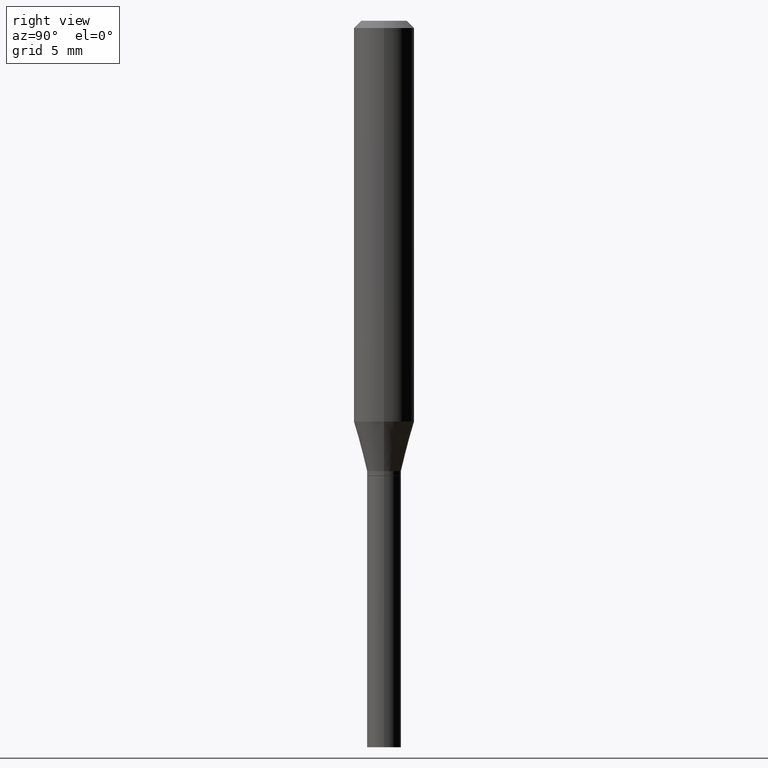
[diagram: clean part render]
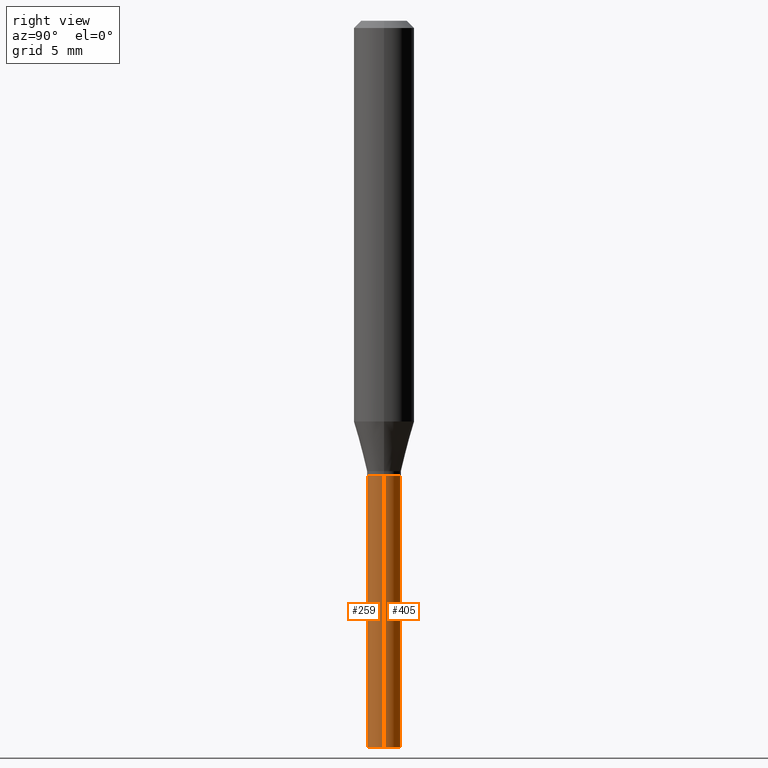
[diagram: same view with one multi-face feature highlighted, each face labeled with its STEP entity id]
A machine part, right view. The highlighted faces form ONE feature: a constant-radius fillet chain: 2 tangent blend faces with common blend radius 0.889 mm. The faces share edges in the B-rep.
Their STEP definitions:
[1] entity #259 (Cylinder):
#18 = LINE ( 'NONE', #295, #393 ) ;
#23 = LINE ( 'NONE', #414, #54 ) ;
#41 = AXIS2_PLACEMENT_3D ( 'NONE', #375, #267, #230 ) ;
#51 = CARTESIAN_POINT ( 'NONE',  ( -0.03500000000000000333, -4.010917275872602238E-15, -1.500000000000000222 ) ) ;
#54 = VECTOR ( 'NONE', #343, 39.37007874015748143 ) ;
#78 = VERTEX_POINT ( 'NONE', #298 ) ;
#95 = EDGE_CURVE ( 'NONE', #182, #274, #433, .T. ) ;
#102 = ORIENTED_EDGE ( 'NONE', *, *, #333, .T. ) ;
#127 = DIRECTION ( 'NONE',  ( -2.445468806185136597E-29, 3.491481338843145583E-15, 1.000000000000000000 ) ) ;
#131 = ORIENTED_EDGE ( 'NONE', *, *, #413, .F. ) ;
#150 = CIRCLE ( 'NONE', #41, 0.03500000000000000333 ) ;
#151 = VERTEX_POINT ( 'NONE', #51 ) ;
#167 = FACE_OUTER_BOUND ( 'NONE', #465, .T. ) ;
#182 = VERTEX_POINT ( 'NONE', #273 ) ;
#185 = CARTESIAN_POINT ( 'NONE',  ( 0.03500000000000000333, -3.526396152231576048E-15, -0.9400000000000000577 ) ) ;
#195 = DIRECTION ( 'NONE',  ( 1.000000000000000000, -6.982962677686265922E-15, 4.876176775795936353E-29 ) ) ;
#208 = ORIENTED_EDGE ( 'NONE', *, *, #95, .F. ) ;
#230 = DIRECTION ( 'NONE',  ( 1.000000000000000000, -6.982962677686276966E-15, 0.000000000000000000 ) ) ;
#246 = EDGE_CURVE ( 'NONE', #151, #78, #150, .T. ) ;
#257 = DIRECTION ( 'NONE',  ( -2.445468806185136877E-29, 3.491481338843145188E-15, 1.000000000000000000 ) ) ;
#259 = ADVANCED_FACE ( 'NONE', ( #167 ), #309, .T. ) ;
#267 = DIRECTION ( 'NONE',  ( -2.445468806185136597E-29, 3.491481338843145583E-15, 1.000000000000000000 ) ) ;
#273 = CARTESIAN_POINT ( 'NONE',  ( -0.03500000000000000333, -4.010917275872602238E-15, -0.9400000000000000577 ) ) ;
#274 = VERTEX_POINT ( 'NONE', #185 ) ;
#295 = CARTESIAN_POINT ( 'NONE',  ( -0.03500000000000000333, 2.486899575160350887E-16, -1.721627281589217108E-30 ) ) ;
#298 = CARTESIAN_POINT ( 'NONE',  ( 0.03500000000000000333, -5.481625701983738143E-15, -1.500000000000000222 ) ) ;
#309 = CYLINDRICAL_SURFACE ( 'NONE', #428, 0.03500000000000000333 ) ;
#333 = EDGE_CURVE ( 'NONE', #78, #274, #23, .T. ) ;
#336 = DIRECTION ( 'NONE',  ( 1.000000000000000000, -6.982962677686262766E-15, 0.000000000000000000 ) ) ;
#343 = DIRECTION ( 'NONE',  ( -2.445468806185136877E-29, 3.491481338843145188E-15, 1.000000000000000000 ) ) ;
#358 = CARTESIAN_POINT ( 'NONE',  ( 0.000000000000000000, 0.000000000000000000, 0.000000000000000000 ) ) ;
#365 = DIRECTION ( 'NONE',  ( -2.445468806185136597E-29, 3.491481338843145583E-15, 1.000000000000000000 ) ) ;
#367 = ORIENTED_EDGE ( 'NONE', *, *, #246, .T. ) ;
#375 = CARTESIAN_POINT ( 'NONE',  ( 3.668203209277704895E-29, -5.237222008264718177E-15, -1.500000000000000222 ) ) ;
#393 = VECTOR ( 'NONE', #257, 39.37007874015748143 ) ;
#401 = AXIS2_PLACEMENT_3D ( 'NONE', #447, #127, #336 ) ;
#413 = EDGE_CURVE ( 'NONE', #151, #182, #18, .T. ) ;
#414 = CARTESIAN_POINT ( 'NONE',  ( 0.03500000000000000333, -2.444036937190193250E-16, 1.706661871528577808E-30 ) ) ;
#428 = AXIS2_PLACEMENT_3D ( 'NONE', #358, #365, #195 ) ;
#433 = CIRCLE ( 'NONE', #401, 0.03500000000000000333 ) ;
#447 = CARTESIAN_POINT ( 'NONE',  ( 2.298740677814028446E-29, -3.281992458512556871E-15, -0.9400000000000000577 ) ) ;
#465 = EDGE_LOOP ( 'NONE', ( #131, #367, #102, #208 ) ) ;
[2] entity #405 (Cylinder):
#12 = CYLINDRICAL_SURFACE ( 'NONE', #289, 0.03500000000000000333 ) ;
#18 = LINE ( 'NONE', #295, #393 ) ;
#23 = LINE ( 'NONE', #414, #54 ) ;
#49 = FACE_OUTER_BOUND ( 'NONE', #68, .T. ) ;
#51 = CARTESIAN_POINT ( 'NONE',  ( -0.03500000000000000333, -4.010917275872602238E-15, -1.500000000000000222 ) ) ;
#54 = VECTOR ( 'NONE', #343, 39.37007874015748143 ) ;
#68 = EDGE_LOOP ( 'NONE', ( #176, #170, #352, #184 ) ) ;
#78 = VERTEX_POINT ( 'NONE', #298 ) ;
#82 = CARTESIAN_POINT ( 'NONE',  ( 0.000000000000000000, 0.000000000000000000, 0.000000000000000000 ) ) ;
#84 = CARTESIAN_POINT ( 'NONE',  ( 2.298740677814028446E-29, -3.281992458512556871E-15, -0.9400000000000000577 ) ) ;
#94 = DIRECTION ( 'NONE',  ( 1.000000000000000000, -6.982962677686276966E-15, 0.000000000000000000 ) ) ;
#123 = DIRECTION ( 'NONE',  ( 1.000000000000000000, -6.982962677686262766E-15, 0.000000000000000000 ) ) ;
#151 = VERTEX_POINT ( 'NONE', #51 ) ;
#152 = DIRECTION ( 'NONE',  ( -2.445468806185136597E-29, 3.491481338843145583E-15, 1.000000000000000000 ) ) ;
#170 = ORIENTED_EDGE ( 'NONE', *, *, #413, .T. ) ;
#171 = CARTESIAN_POINT ( 'NONE',  ( 3.668203209277704895E-29, -5.237222008264718177E-15, -1.500000000000000222 ) ) ;
#176 = ORIENTED_EDGE ( 'NONE', *, *, #320, .T. ) ;
#182 = VERTEX_POINT ( 'NONE', #273 ) ;
#184 = ORIENTED_EDGE ( 'NONE', *, *, #333, .F. ) ;
#185 = CARTESIAN_POINT ( 'NONE',  ( 0.03500000000000000333, -3.526396152231576048E-15, -0.9400000000000000577 ) ) ;
#194 = DIRECTION ( 'NONE',  ( -2.445468806185136597E-29, 3.491481338843145583E-15, 1.000000000000000000 ) ) ;
#196 = CIRCLE ( 'NONE', #459, 0.03500000000000000333 ) ;
#257 = DIRECTION ( 'NONE',  ( -2.445468806185136877E-29, 3.491481338843145188E-15, 1.000000000000000000 ) ) ;
#273 = CARTESIAN_POINT ( 'NONE',  ( -0.03500000000000000333, -4.010917275872602238E-15, -0.9400000000000000577 ) ) ;
#274 = VERTEX_POINT ( 'NONE', #185 ) ;
#289 = AXIS2_PLACEMENT_3D ( 'NONE', #82, #152, #438 ) ;
#295 = CARTESIAN_POINT ( 'NONE',  ( -0.03500000000000000333, 2.486899575160350887E-16, -1.721627281589217108E-30 ) ) ;
#298 = CARTESIAN_POINT ( 'NONE',  ( 0.03500000000000000333, -5.481625701983738143E-15, -1.500000000000000222 ) ) ;
#320 = EDGE_CURVE ( 'NONE', #78, #151, #196, .T. ) ;
#333 = EDGE_CURVE ( 'NONE', #78, #274, #23, .T. ) ;
#335 = CIRCLE ( 'NONE', #451, 0.03500000000000000333 ) ;
#343 = DIRECTION ( 'NONE',  ( -2.445468806185136877E-29, 3.491481338843145188E-15, 1.000000000000000000 ) ) ;
#352 = ORIENTED_EDGE ( 'NONE', *, *, #423, .F. ) ;
#393 = VECTOR ( 'NONE', #257, 39.37007874015748143 ) ;
#405 = ADVANCED_FACE ( 'NONE', ( #49 ), #12, .T. ) ;
#413 = EDGE_CURVE ( 'NONE', #151, #182, #18, .T. ) ;
#414 = CARTESIAN_POINT ( 'NONE',  ( 0.03500000000000000333, -2.444036937190193250E-16, 1.706661871528577808E-30 ) ) ;
#417 = DIRECTION ( 'NONE',  ( -2.445468806185136597E-29, 3.491481338843145583E-15, 1.000000000000000000 ) ) ;
#423 = EDGE_CURVE ( 'NONE', #274, #182, #335, .T. ) ;
#438 = DIRECTION ( 'NONE',  ( 1.000000000000000000, -6.982962677686265922E-15, 4.876176775795936353E-29 ) ) ;
#451 = AXIS2_PLACEMENT_3D ( 'NONE', #84, #194, #123 ) ;
#459 = AXIS2_PLACEMENT_3D ( 'NONE', #171, #417, #94 ) ;